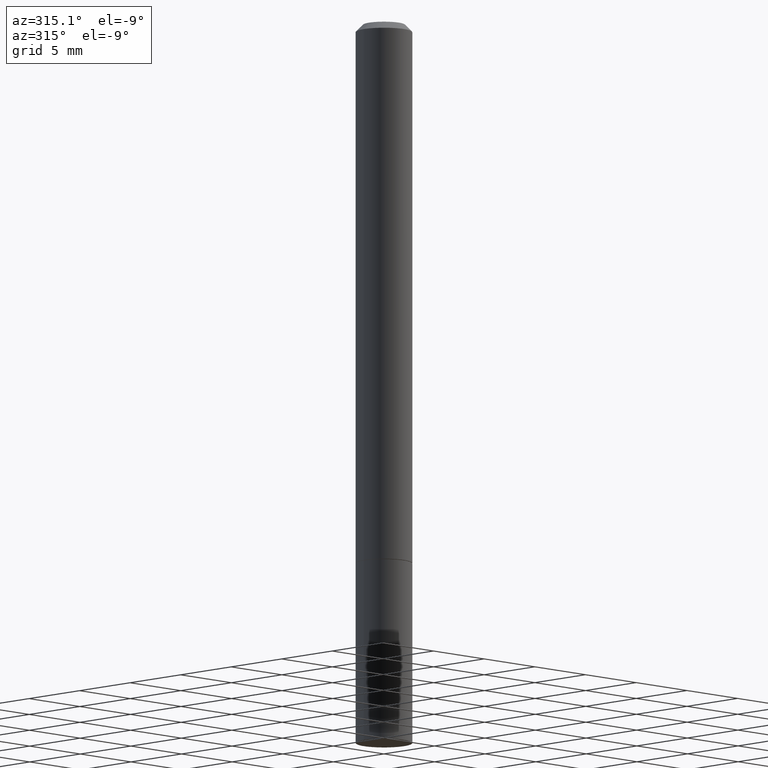
[diagram: clean part render]
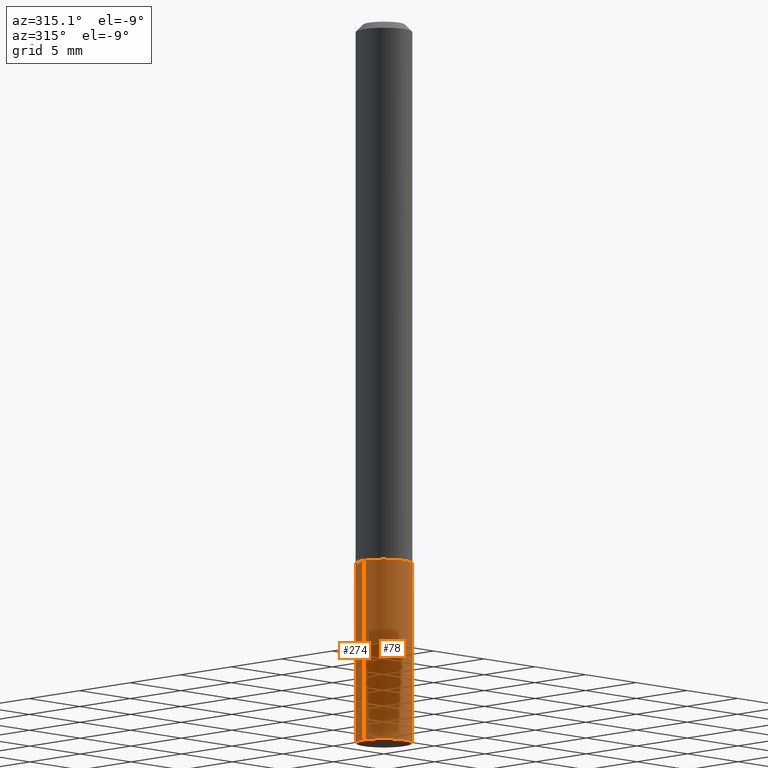
[diagram: same view with one multi-face feature highlighted, each face labeled with its STEP entity id]
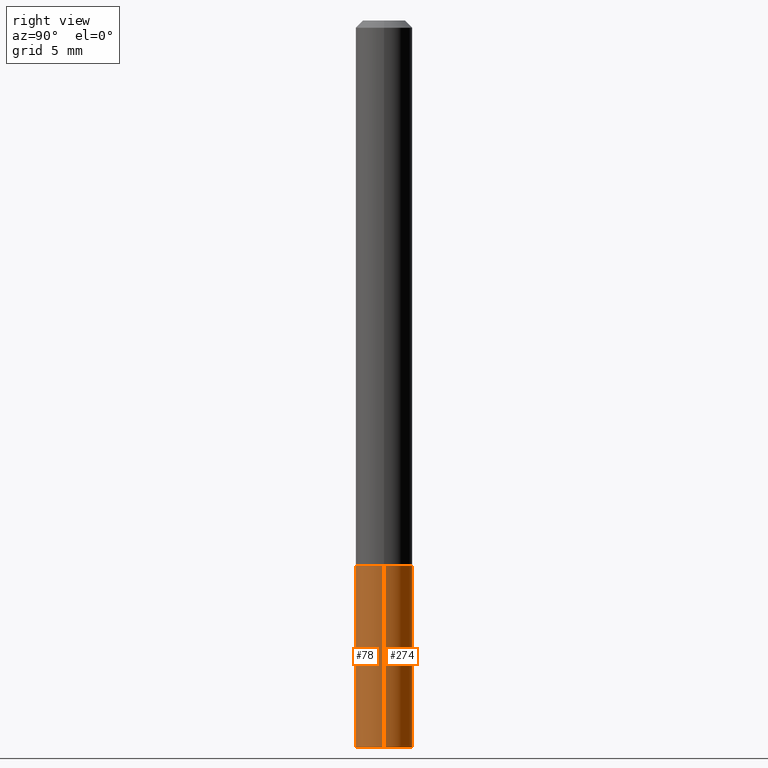
[diagram: same view with one multi-face feature highlighted, each face labeled with its STEP entity id]
A machine part, auxiliary view. The highlighted faces form ONE feature: a constant-radius fillet chain: 2 tangent blend faces with common blend radius 1.9837 mm. The faces share edges in the B-rep.
A second angle (right view) of the same feature is appended — it is thin or edge-on in the first view.
Their STEP definitions:
[1] entity #78 (Cylinder):
#5 = ORIENTED_EDGE ( 'NONE', *, *, #340, .F. ) ;
#21 = VERTEX_POINT ( 'NONE', #226 ) ;
#29 = CIRCLE ( 'NONE', #184, 0.07810000000000000275 ) ;
#30 = FACE_OUTER_BOUND ( 'NONE', #381, .T. ) ;
#36 = EDGE_CURVE ( 'NONE', #280, #322, #138, .T. ) ;
#39 = AXIS2_PLACEMENT_3D ( 'NONE', #88, #240, #360 ) ;
#71 = CARTESIAN_POINT ( 'NONE',  ( 0.07810000000000000275, -5.453693851272974364E-16, 3.808294061896625703E-30 ) ) ;
#78 = ADVANCED_FACE ( 'NONE', ( #30 ), #213, .T. ) ;
#88 = CARTESIAN_POINT ( 'NONE',  ( 3.668203209277704335E-29, -5.237222008264717388E-15, -1.499999999999999778 ) ) ;
#98 = ORIENTED_EDGE ( 'NONE', *, *, #304, .T. ) ;
#106 = CARTESIAN_POINT ( 'NONE',  ( -0.07810000000000000275, 5.549338766286382647E-16, -3.841688305489081275E-30 ) ) ;
#138 = CIRCLE ( 'NONE', #39, 0.07810000000000000275 ) ;
#140 = ORIENTED_EDGE ( 'NONE', *, *, #150, .T. ) ;
#148 = DIRECTION ( 'NONE',  ( -2.445468806185136597E-29, 3.491481338843145583E-15, 1.000000000000000000 ) ) ;
#150 = EDGE_CURVE ( 'NONE', #246, #21, #29, .T. ) ;
#154 = VECTOR ( 'NONE', #163, 39.37007874015748143 ) ;
#163 = DIRECTION ( 'NONE',  ( -2.445468806185136877E-29, 3.491481338843145188E-15, 1.000000000000000000 ) ) ;
#165 = LINE ( 'NONE', #71, #154 ) ;
#181 = CARTESIAN_POINT ( 'NONE',  ( 0.000000000000000000, 0.000000000000000000, 0.000000000000000000 ) ) ;
#183 = CARTESIAN_POINT ( 'NONE',  ( 4.890937612370273194E-29, -6.982962677686291165E-15, -2.000000000000000000 ) ) ;
#184 = AXIS2_PLACEMENT_3D ( 'NONE', #183, #148, #325 ) ;
#198 = CARTESIAN_POINT ( 'NONE',  ( -0.07810000000000000275, -5.555158466346866012E-15, -1.499999999999999778 ) ) ;
#213 = CYLINDRICAL_SURFACE ( 'NONE', #303, 0.07810000000000000275 ) ;
#220 = ORIENTED_EDGE ( 'NONE', *, *, #36, .F. ) ;
#226 = CARTESIAN_POINT ( 'NONE',  ( 0.07809999999999991949, -7.518767571312248168E-15, -2.000000000000000000 ) ) ;
#228 = DIRECTION ( 'NONE',  ( -2.445468806185136877E-29, 3.491481338843145188E-15, 1.000000000000000000 ) ) ;
#240 = DIRECTION ( 'NONE',  ( -2.445468806185136597E-29, 3.491481338843145583E-15, 1.000000000000000000 ) ) ;
#241 = VECTOR ( 'NONE', #228, 39.37007874015748143 ) ;
#246 = VERTEX_POINT ( 'NONE', #341 ) ;
#247 = LINE ( 'NONE', #106, #241 ) ;
#270 = DIRECTION ( 'NONE',  ( -2.445468806185136597E-29, 3.491481338843145583E-15, 1.000000000000000000 ) ) ;
#273 = DIRECTION ( 'NONE',  ( 1.000000000000000000, -6.982962677686266711E-15, 4.876176775795935232E-29 ) ) ;
#280 = VERTEX_POINT ( 'NONE', #198 ) ;
#303 = AXIS2_PLACEMENT_3D ( 'NONE', #181, #270, #273 ) ;
#304 = EDGE_CURVE ( 'NONE', #21, #322, #165, .T. ) ;
#313 = CARTESIAN_POINT ( 'NONE',  ( 0.07810000000000000275, -5.782591393392014824E-15, -1.499999999999999778 ) ) ;
#322 = VERTEX_POINT ( 'NONE', #313 ) ;
#325 = DIRECTION ( 'NONE',  ( 1.000000000000000000, -6.982962677686266711E-15, 0.000000000000000000 ) ) ;
#340 = EDGE_CURVE ( 'NONE', #246, #280, #247, .T. ) ;
#341 = CARTESIAN_POINT ( 'NONE',  ( -0.07809999999999991949, -6.437593292558994518E-15, -2.000000000000000000 ) ) ;
#360 = DIRECTION ( 'NONE',  ( 1.000000000000000000, -6.982962677686266711E-15, 0.000000000000000000 ) ) ;
#381 = EDGE_LOOP ( 'NONE', ( #5, #140, #98, #220 ) ) ;
[2] entity #274 (Cylinder):
#18 = ORIENTED_EDGE ( 'NONE', *, *, #304, .F. ) ;
#21 = VERTEX_POINT ( 'NONE', #226 ) ;
#28 = EDGE_CURVE ( 'NONE', #322, #280, #35, .T. ) ;
#35 = CIRCLE ( 'NONE', #92, 0.07810000000000000275 ) ;
#46 = CYLINDRICAL_SURFACE ( 'NONE', #73, 0.07810000000000000275 ) ;
#49 = FACE_OUTER_BOUND ( 'NONE', #128, .T. ) ;
#63 = CARTESIAN_POINT ( 'NONE',  ( 3.668203209277704335E-29, -5.237222008264717388E-15, -1.499999999999999778 ) ) ;
#71 = CARTESIAN_POINT ( 'NONE',  ( 0.07810000000000000275, -5.453693851272974364E-16, 3.808294061896625703E-30 ) ) ;
#73 = AXIS2_PLACEMENT_3D ( 'NONE', #130, #193, #251 ) ;
#80 = DIRECTION ( 'NONE',  ( 1.000000000000000000, -6.982962677686266711E-15, 0.000000000000000000 ) ) ;
#84 = ORIENTED_EDGE ( 'NONE', *, *, #340, .T. ) ;
#92 = AXIS2_PLACEMENT_3D ( 'NONE', #63, #206, #238 ) ;
#105 = ORIENTED_EDGE ( 'NONE', *, *, #28, .F. ) ;
#106 = CARTESIAN_POINT ( 'NONE',  ( -0.07810000000000000275, 5.549338766286382647E-16, -3.841688305489081275E-30 ) ) ;
#110 = ORIENTED_EDGE ( 'NONE', *, *, #209, .T. ) ;
#128 = EDGE_LOOP ( 'NONE', ( #110, #84, #105, #18 ) ) ;
#130 = CARTESIAN_POINT ( 'NONE',  ( 0.000000000000000000, 0.000000000000000000, 0.000000000000000000 ) ) ;
#147 = CIRCLE ( 'NONE', #364, 0.07810000000000000275 ) ;
#154 = VECTOR ( 'NONE', #163, 39.37007874015748143 ) ;
#163 = DIRECTION ( 'NONE',  ( -2.445468806185136877E-29, 3.491481338843145188E-15, 1.000000000000000000 ) ) ;
#165 = LINE ( 'NONE', #71, #154 ) ;
#193 = DIRECTION ( 'NONE',  ( -2.445468806185136597E-29, 3.491481338843145583E-15, 1.000000000000000000 ) ) ;
#198 = CARTESIAN_POINT ( 'NONE',  ( -0.07810000000000000275, -5.555158466346866012E-15, -1.499999999999999778 ) ) ;
#206 = DIRECTION ( 'NONE',  ( -2.445468806185136597E-29, 3.491481338843145583E-15, 1.000000000000000000 ) ) ;
#209 = EDGE_CURVE ( 'NONE', #21, #246, #147, .T. ) ;
#226 = CARTESIAN_POINT ( 'NONE',  ( 0.07809999999999991949, -7.518767571312248168E-15, -2.000000000000000000 ) ) ;
#228 = DIRECTION ( 'NONE',  ( -2.445468806185136877E-29, 3.491481338843145188E-15, 1.000000000000000000 ) ) ;
#238 = DIRECTION ( 'NONE',  ( 1.000000000000000000, -6.982962677686266711E-15, 0.000000000000000000 ) ) ;
#241 = VECTOR ( 'NONE', #228, 39.37007874015748143 ) ;
#246 = VERTEX_POINT ( 'NONE', #341 ) ;
#247 = LINE ( 'NONE', #106, #241 ) ;
#251 = DIRECTION ( 'NONE',  ( 1.000000000000000000, -6.982962677686266711E-15, 4.876176775795935232E-29 ) ) ;
#274 = ADVANCED_FACE ( 'NONE', ( #49 ), #46, .T. ) ;
#280 = VERTEX_POINT ( 'NONE', #198 ) ;
#304 = EDGE_CURVE ( 'NONE', #21, #322, #165, .T. ) ;
#313 = CARTESIAN_POINT ( 'NONE',  ( 0.07810000000000000275, -5.782591393392014824E-15, -1.499999999999999778 ) ) ;
#322 = VERTEX_POINT ( 'NONE', #313 ) ;
#340 = EDGE_CURVE ( 'NONE', #246, #280, #247, .T. ) ;
#341 = CARTESIAN_POINT ( 'NONE',  ( -0.07809999999999991949, -6.437593292558994518E-15, -2.000000000000000000 ) ) ;
#347 = DIRECTION ( 'NONE',  ( -2.445468806185136597E-29, 3.491481338843145583E-15, 1.000000000000000000 ) ) ;
#364 = AXIS2_PLACEMENT_3D ( 'NONE', #369, #347, #80 ) ;
#369 = CARTESIAN_POINT ( 'NONE',  ( 4.890937612370273194E-29, -6.982962677686291165E-15, -2.000000000000000000 ) ) ;